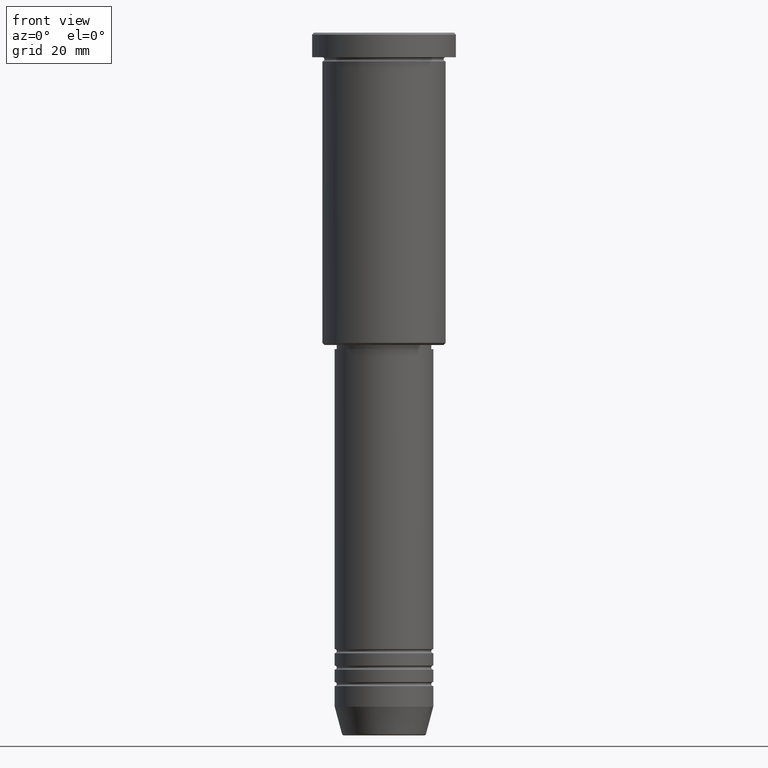
[diagram: clean part render]
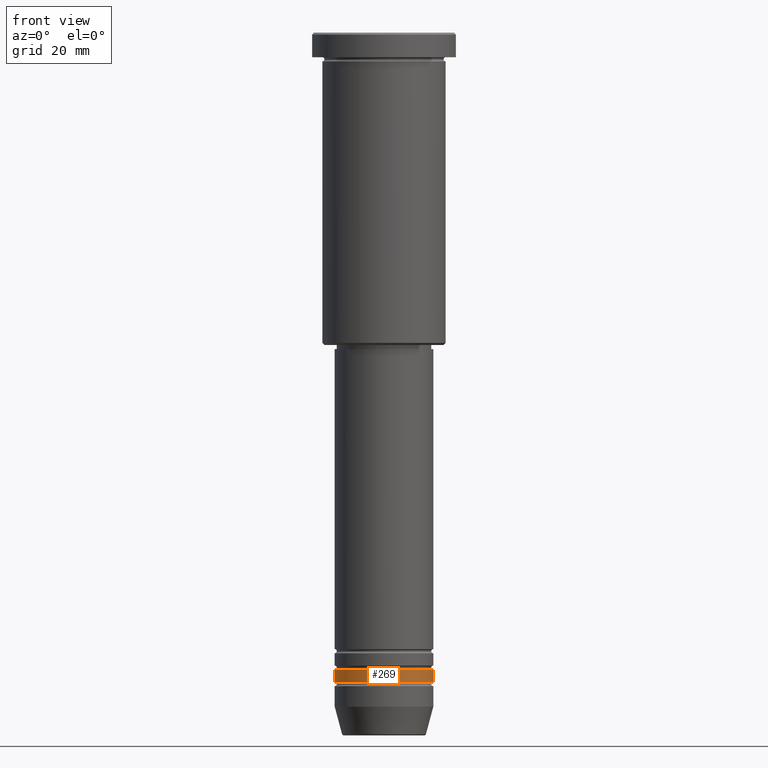
[diagram: same view with one face highlighted and labeled with its STEP entity id]
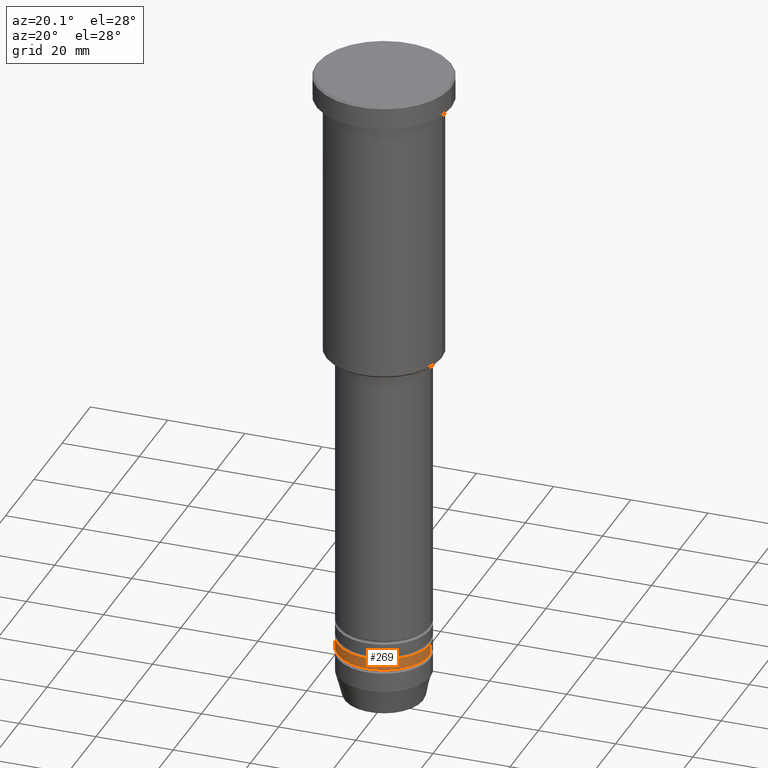
[diagram: same view with one face highlighted and labeled with its STEP entity id]
A machine part, front view. The second image highlights one B-rep face of the part: STEP entity #269.
A second angle (auxiliary view) of the same face is appended — the face is thin or edge-on in the first view.
In plain terms, the highlighted cylindrical surface (partial cylindrical patch) has radius 12 mm, axis along (-0, -0, 1).
Its self-contained STEP definition (entity closure, byte-faithful):
#5 = CYLINDRICAL_SURFACE ( 'NONE', #105, 12.00000000000000000 ) ;
#9 = DIRECTION ( 'NONE',  ( -0.000000000000000000, -0.000000000000000000, 1.000000000000000000 ) ) ;
#58 = CARTESIAN_POINT ( 'NONE',  ( -12.00000000000000000, 1.469576158976823947E-15, -157.9999999999998579 ) ) ;
#92 = CIRCLE ( 'NONE', #582, 12.00000000000000000 ) ;
#104 = EDGE_CURVE ( 'NONE', #967, #255, #613, .T. ) ;
#105 = AXIS2_PLACEMENT_3D ( 'NONE', #644, #9, #819 ) ;
#194 = CARTESIAN_POINT ( 'NONE',  ( 12.00000000000000000, 0.000000000000000000, -157.9999999999998579 ) ) ;
#255 = VERTEX_POINT ( 'NONE', #298 ) ;
#269 = ADVANCED_FACE ( 'NONE', ( #468 ), #5, .T. ) ;
#298 = CARTESIAN_POINT ( 'NONE',  ( -12.00000000000000000, 1.469576158976823947E-15, -154.9999999999998579 ) ) ;
#359 = CARTESIAN_POINT ( 'NONE',  ( 12.00000000000000000, 0.000000000000000000, -154.9999999999998579 ) ) ;
#408 = EDGE_CURVE ( 'NONE', #584, #412, #873, .T. ) ;
#412 = VERTEX_POINT ( 'NONE', #359 ) ;
#452 = DIRECTION ( 'NONE',  ( 1.000000000000000000, 0.000000000000000000, 0.000000000000000000 ) ) ;
#468 = FACE_OUTER_BOUND ( 'NONE', #816, .T. ) ;
#582 = AXIS2_PLACEMENT_3D ( 'NONE', #802, #905, #452 ) ;
#584 = VERTEX_POINT ( 'NONE', #194 ) ;
#613 = LINE ( 'NONE', #709, #886 ) ;
#644 = CARTESIAN_POINT ( 'NONE',  ( 0.000000000000000000, 0.000000000000000000, 0.000000000000000000 ) ) ;
#649 = EDGE_CURVE ( 'NONE', #967, #584, #672, .T. ) ;
#672 = CIRCLE ( 'NONE', #918, 12.00000000000000000 ) ;
#686 = VECTOR ( 'NONE', #706, 1000.000000000000000 ) ;
#694 = ORIENTED_EDGE ( 'NONE', *, *, #408, .T. ) ;
#706 = DIRECTION ( 'NONE',  ( -0.000000000000000000, -0.000000000000000000, 1.000000000000000000 ) ) ;
#709 = CARTESIAN_POINT ( 'NONE',  ( -12.00000000000000000, 1.469576158976823947E-15, 0.000000000000000000 ) ) ;
#802 = CARTESIAN_POINT ( 'NONE',  ( 0.000000000000000000, 0.000000000000000000, -154.9999999999998579 ) ) ;
#803 = DIRECTION ( 'NONE',  ( -0.000000000000000000, -0.000000000000000000, 1.000000000000000000 ) ) ;
#816 = EDGE_LOOP ( 'NONE', ( #1143, #1017, #694, #1096 ) ) ;
#819 = DIRECTION ( 'NONE',  ( 1.000000000000000000, 0.000000000000000000, 0.000000000000000000 ) ) ;
#873 = LINE ( 'NONE', #1171, #686 ) ;
#886 = VECTOR ( 'NONE', #803, 1000.000000000000000 ) ;
#905 = DIRECTION ( 'NONE',  ( -0.000000000000000000, -0.000000000000000000, 1.000000000000000000 ) ) ;
#918 = AXIS2_PLACEMENT_3D ( 'NONE', #1041, #1022, #1135 ) ;
#967 = VERTEX_POINT ( 'NONE', #58 ) ;
#1017 = ORIENTED_EDGE ( 'NONE', *, *, #649, .T. ) ;
#1022 = DIRECTION ( 'NONE',  ( -0.000000000000000000, -0.000000000000000000, 1.000000000000000000 ) ) ;
#1041 = CARTESIAN_POINT ( 'NONE',  ( 0.000000000000000000, 0.000000000000000000, -157.9999999999998579 ) ) ;
#1067 = EDGE_CURVE ( 'NONE', #255, #412, #92, .T. ) ;
#1096 = ORIENTED_EDGE ( 'NONE', *, *, #1067, .F. ) ;
#1135 = DIRECTION ( 'NONE',  ( 1.000000000000000000, 0.000000000000000000, 0.000000000000000000 ) ) ;
#1143 = ORIENTED_EDGE ( 'NONE', *, *, #104, .F. ) ;
#1171 = CARTESIAN_POINT ( 'NONE',  ( 12.00000000000000000, 0.000000000000000000, 0.000000000000000000 ) ) ;